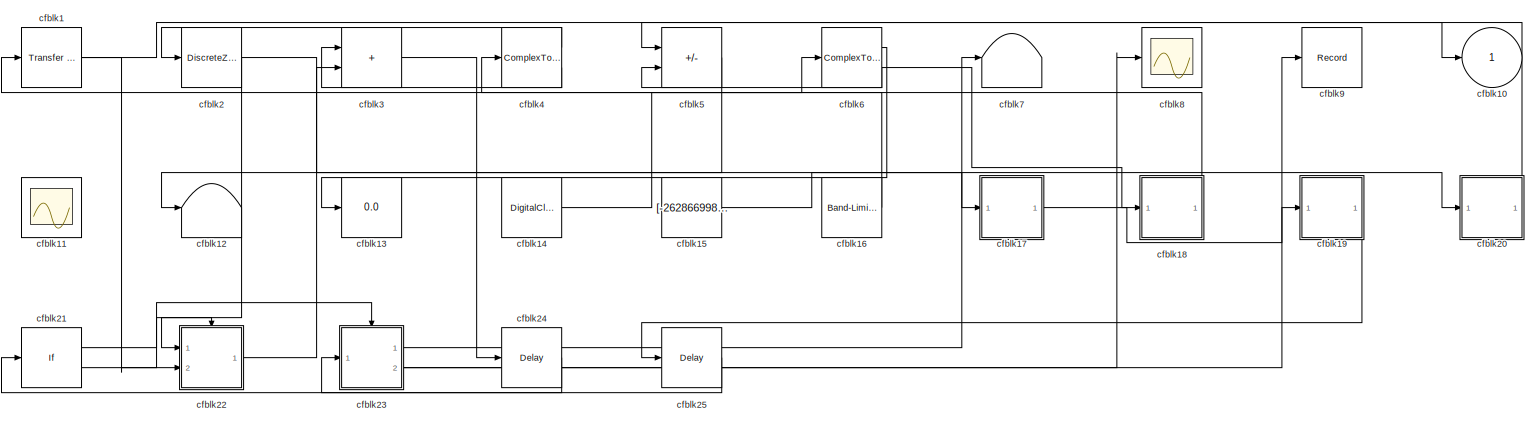
[diagram: root canvas - part 1/1, most of the canvas]
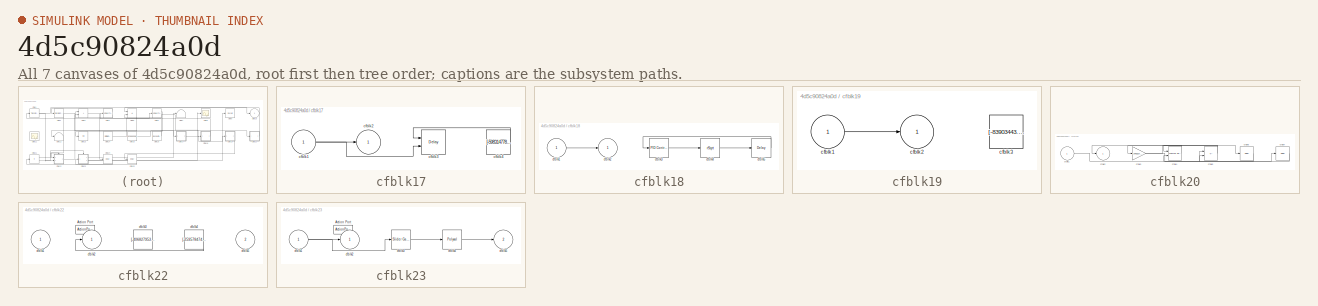
[diagram: thumbnail index - all 7 canvases of the model, root first then tree order]
MODEL slx_4d5c90824a0d
KIND model
CONFIG AbsTol = auto
CONFIG EnableMultiTasking = off
CONFIG FixedStep = auto
CONFIG MaxStep = auto
CONFIG MinStep = auto
CONFIG RelTol = 1e-3
CONFIG SampleTimeConstraint = Unconstrained
CONFIG SolverName = VariableStepAuto
CONFIG StartTime = 0.0
CONFIG StopTime = 10.0
BLOCK [Reference] cfblk1  REF=simulink/Discrete/Transfer Fcn
First Order
  Ports = [1, 1]
  SourceBlock = simulink/Discrete/Transfer Fcn\nFirst Order
  SourceProductBaseCode = SL
  SourceType = First Order Transfer Fcn
BLOCK [Outport] cfblk10
BLOCK [Scope] cfblk11
  Floating = on
  NumInputPorts = 1
  Ports = []
BLOCK [Terminator] cfblk12
BLOCK [Display] cfblk13
  Decimation = 1
  Ports = [1]
BLOCK [DigitalClock] cfblk14
BLOCK [Constant] cfblk15
  SampleTime = 1
  Value = [-262866998.370252]
BLOCK [Reference] cfblk16  REF=simulink/Sources/Band-Limited
White Noise
  Ports = [0, 1]
  SourceBlock = simulink/Sources/Band-Limited\nWhite Noise
  SourceProductBaseCode = SL
  SourceType = Band-Limited White Noise.
BLOCK [SubSystem] cfblk17
  Ports = [1, 1]
  RequestExecContextInheritance = off
BLOCK [Inport] cfblk17/cfblk1
BLOCK [Outport] cfblk17/cfblk2
BLOCK [Delay] cfblk17/cfblk3
  InputPortMap = u0,e6
  Ports = [2, 1]
  SampleTime = 1
  ShowEnablePort = on
BLOCK [Constant] cfblk17/cfblk4
  SampleTime = 1
  Value = [-598314778.143898]
BLOCK [SubSystem] cfblk18
  Ports = [1, 1]
  RequestExecContextInheritance = off
BLOCK [Inport] cfblk18/cfblk1
BLOCK [Outport] cfblk18/cfblk2
BLOCK [Reference] cfblk18/cfblk3  REF=slpidlib/PID Controller
  Ports = [1, 1]
  SourceBlock = slpidlib/PID Controller
  SourceProductBaseCode = SL
  SourceType = PID 1dof
BLOCK [Sqrt] cfblk18/cfblk4
  AlgorithmType = Newton-Raphson
  Operator = rSqrt
BLOCK [Delay] cfblk18/cfblk5
  InputPortMap = u0
  Ports = [1, 1]
  SampleTime = 1
BLOCK [SubSystem] cfblk19
  Ports = [1, 1]
  RequestExecContextInheritance = off
BLOCK [Inport] cfblk19/cfblk1
BLOCK [Outport] cfblk19/cfblk2
BLOCK [Constant] cfblk19/cfblk3
  SampleTime = 1
  Value = [-83903443.308184]
BLOCK [DiscreteZeroPole] cfblk2
  Gain = 1
  Poles = [0 0.5]
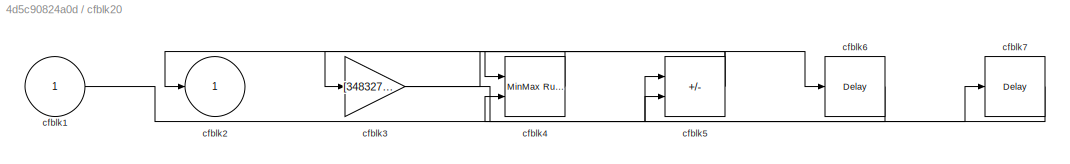
BLOCK [SubSystem] cfblk20
  Ports = [1, 1]
  RequestExecContextInheritance = off
BLOCK [Inport] cfblk20/cfblk1
BLOCK [Outport] cfblk20/cfblk2
BLOCK [Gain] cfblk20/cfblk3
  Gain = [348327863.060916]
BLOCK [Reference] cfblk20/cfblk4  REF=simulink/Math
Operations/MinMax
Running
Resettable
  Ports = [2, 1]
  SourceBlock = simulink/Math\nOperations/MinMax\nRunning\nResettable
  SourceProductBaseCode = SL
  SourceType = MinMax Running Resettable
BLOCK [Sum] cfblk20/cfblk5
  IconShape = rectangular
  Inputs = +-
  Ports = [2, 1]
BLOCK [Delay] cfblk20/cfblk6
  InputPortMap = u0
  Ports = [1, 1]
  SampleTime = 1
BLOCK [Delay] cfblk20/cfblk7
  InputPortMap = u0
  Ports = [1, 1]
  SampleTime = 1
BLOCK [If] cfblk21
  IfExpression = u1 >= 0
  Ports = [1, 2]
  SampleTime = 1
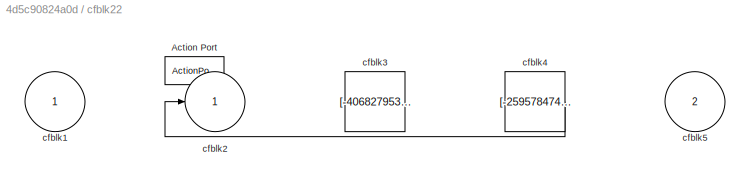
BLOCK [SubSystem] cfblk22
  Ports = [2, 1, 0, 0, 0, 0, 0, 1]
  RequestExecContextInheritance = off
  TreatAsAtomicUnit = on
BLOCK [ActionPort] cfblk22/Action Port
  ActionPortLabel = if(u1 >= 0)
BLOCK [Inport] cfblk22/cfblk1
BLOCK [Outport] cfblk22/cfblk2
BLOCK [Constant] cfblk22/cfblk3
  SampleTime = 1
  Value = [-406827953.675390]
BLOCK [Constant] cfblk22/cfblk4
  SampleTime = 1
  Value = [-259578474.405705]
BLOCK [Inport] cfblk22/cfblk5
  Port = 2
BLOCK [SubSystem] cfblk23
  Ports = [1, 2, 0, 0, 0, 0, 0, 1]
  RequestExecContextInheritance = off
  TreatAsAtomicUnit = on
BLOCK [ActionPort] cfblk23/Action Port
  ActionPortLabel = else
BLOCK [Inport] cfblk23/cfblk1
BLOCK [Outport] cfblk23/cfblk2
BLOCK [Reference] cfblk23/cfblk3  REF=simulink/Math
Operations/Slider
Gain
  Ports = [1, 1]
  SourceBlock = simulink/Math\nOperations/Slider\nGain
  SourceProductBaseCode = SL
  SourceType = Slider Gain
BLOCK [Polyval] cfblk23/cfblk4
  Coefs = [ +2.081618890e-019, -1.441693666e-014, +4.719686976e-010, -8.536869453e-006, +1.621573104e-001, -8.087801117e+001 ]
BLOCK [Outport] cfblk23/cfblk5
  Port = 2
BLOCK [Delay] cfblk24
  InputPortMap = u0
  Ports = [1, 1]
  SampleTime = 1
BLOCK [Delay] cfblk25
  InputPortMap = u0
  Ports = [1, 1]
  SampleTime = 1
BLOCK [Sum] cfblk3
  IconShape = rectangular
  Ports = [2, 1]
BLOCK [ComplexToRealImag] cfblk4
  Ports = [1, 2]
BLOCK [Sum] cfblk5
  IconShape = rectangular
  Inputs = --
  Ports = [2, 1]
BLOCK [ComplexToRealImag] cfblk6
  Ports = [1, 2]
BLOCK [Terminator] cfblk7
BLOCK [Scope] cfblk8
  Floating = off
  NumInputPorts = 1
  Ports = [1]
BLOCK [Record] cfblk9
  FileSettingsInternal = {"entries":[{"content":{"excelSettings":{"content":{},"type":"Streamout.ExcelSettings"}},"type":"Streamout.FileSettingStorage","uuid":"8c4009a6-643c-4ef5-a589-c69d8bb6a907"}],"packageUris":["http://schema.mathworks.com/mf0/streamout_blocks/R2020a"],"version":"1.0"}
  Ports = [1]
  SignalsInternal = {"entries":[{"content":{"signals":[{"content":{"blockPath":["sampleModel126/cfblk9"],"channel":[],"dimensions":[1],"domain":"sampleModel126/cfblk9","lineColor":"#b746ff","plots":[1],"port":1,"sid":[""],"signalID":4441,"signalName":"cfblk17"},"type":"RecordBlkView.Signal","uuid":"8febd7a9-18c4-4dc6-a1db-3b0ad3c2054f"}]},"type":"RecordBlkView.InputSignals","uuid":"b4eecfa2-89b3-4da7-8344-9a7210143e6...<+95ch>
  VisualizationBindings = {"sparklinesplugin":{"info":[{"bindingParametersList":[],"subplotID":1}]}}
LINE cfblk14:1 -> cfblk6:1
LINE cfblk15:1 -> cfblk20:1
LINE cfblk16:1 -> cfblk1:1
NET cfblk17/cfblk1:1 -> cfblk17/cfblk2:1, cfblk17/cfblk3:2
LINE cfblk17/cfblk4:1 -> cfblk17/cfblk3:1
LINE cfblk17:1 -> cfblk9:1
LINE cfblk18/cfblk1:1 -> cfblk18/cfblk2:1
LINE cfblk18/cfblk3:1 -> cfblk18/cfblk4:1
LINE cfblk18/cfblk4:1 -> cfblk18/cfblk5:1
LINE cfblk18/cfblk5:1 -> cfblk18/cfblk3:1
LINE cfblk18:1 -> cfblk4:1
LINE cfblk19/cfblk1:1 -> cfblk19/cfblk2:1
LINE cfblk19:1 -> cfblk25:1
NET cfblk1:1 -> cfblk10:1, cfblk22:2
LINE cfblk20/cfblk1:1 -> cfblk20/cfblk5:1
NET cfblk20/cfblk3:1 -> cfblk20/cfblk6:1, cfblk20/cfblk7:1
LINE cfblk20/cfblk4:1 -> cfblk20/cfblk3:1
NET cfblk20/cfblk5:1 -> cfblk20/cfblk2:1, cfblk20/cfblk4:1
LINE cfblk20/cfblk6:1 -> cfblk20/cfblk5:2
LINE cfblk20/cfblk7:1 -> cfblk20/cfblk4:2
LINE cfblk20:1 -> cfblk5:1
LINE cfblk21:1 -> cfblk22:ifaction
LINE cfblk21:2 -> cfblk23:ifaction
LINE cfblk22/cfblk4:1 -> cfblk22/cfblk2:1
LINE cfblk22:1 -> cfblk3:2
NET cfblk23/cfblk1:1 -> cfblk23/cfblk2:1, cfblk23/cfblk3:1
LINE cfblk23/cfblk3:1 -> cfblk23/cfblk4:1
LINE cfblk23/cfblk4:1 -> cfblk23/cfblk5:1
LINE cfblk23:1 -> cfblk7:1
NET cfblk23:2 -> cfblk19:1, cfblk8:1
LINE cfblk24:1 -> cfblk23:1
LINE cfblk25:1 -> cfblk21:1
NET cfblk2:1 -> cfblk17:1, cfblk22:1
LINE cfblk3:1 -> cfblk24:1
LINE cfblk4:1 -> cfblk2:1
LINE cfblk4:2 -> cfblk3:1
LINE cfblk5:1 -> cfblk12:1
LINE cfblk6:1 -> cfblk13:1
NET cfblk6:2 -> cfblk18:1, cfblk5:2
note: NET lines group one-source signal fan-out (src -> all destinations, sorted); 1:1 wires keep LINE
